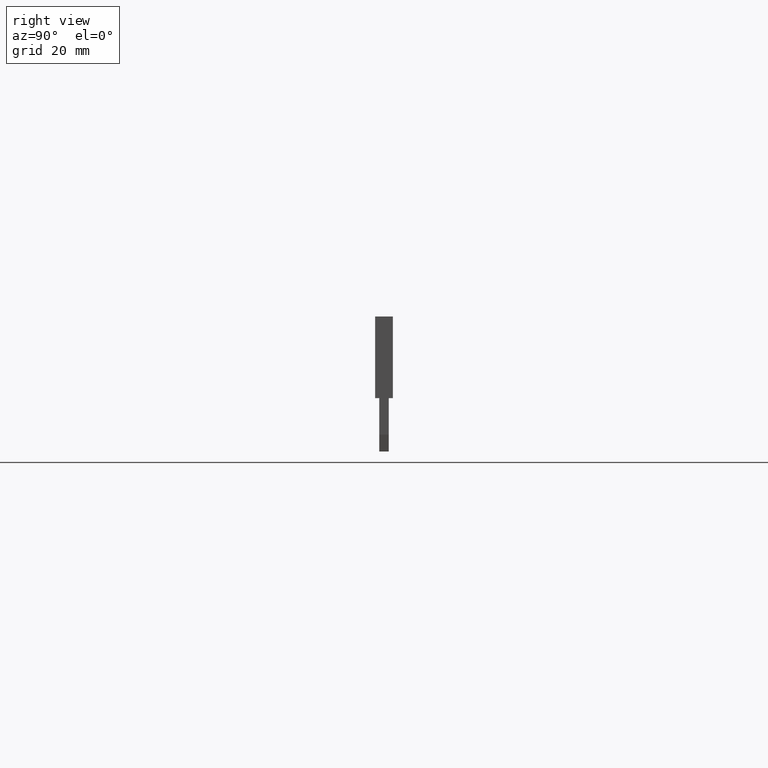
[diagram: clean part render]
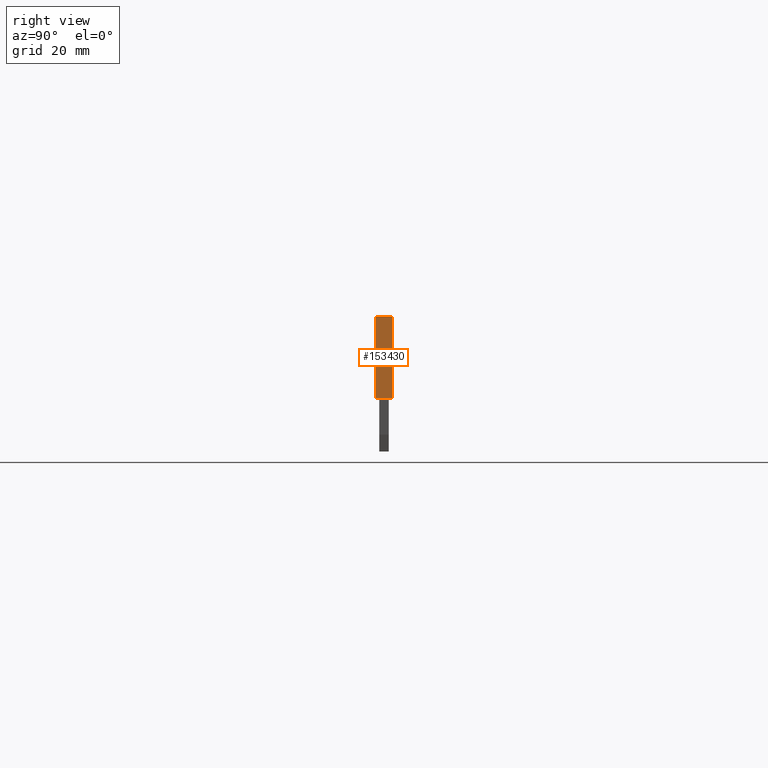
[diagram: same view with one face highlighted and labeled with its STEP entity id]
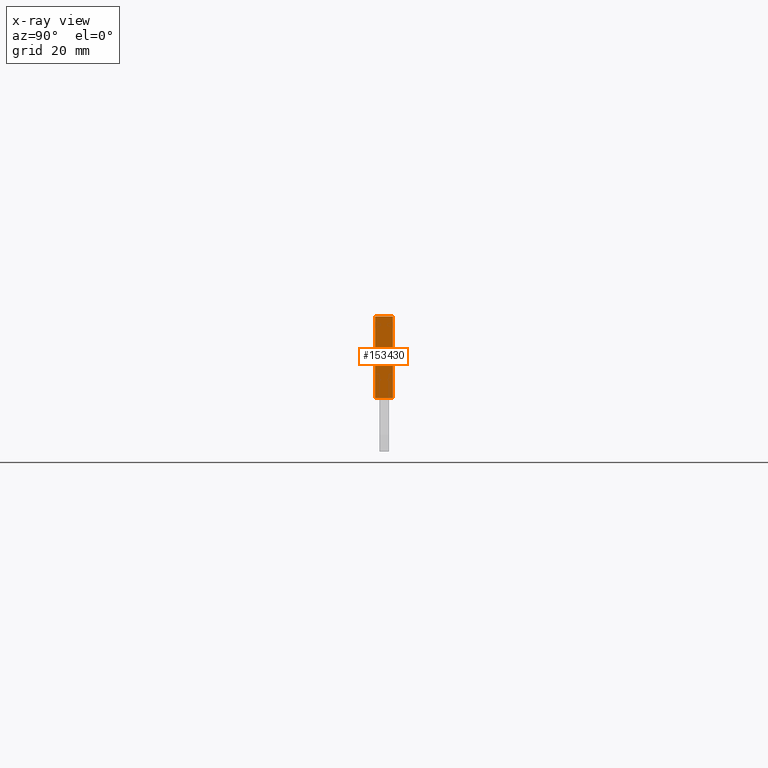
[diagram: x-ray of the same camera — body ghosted, the highlighted face saturated]
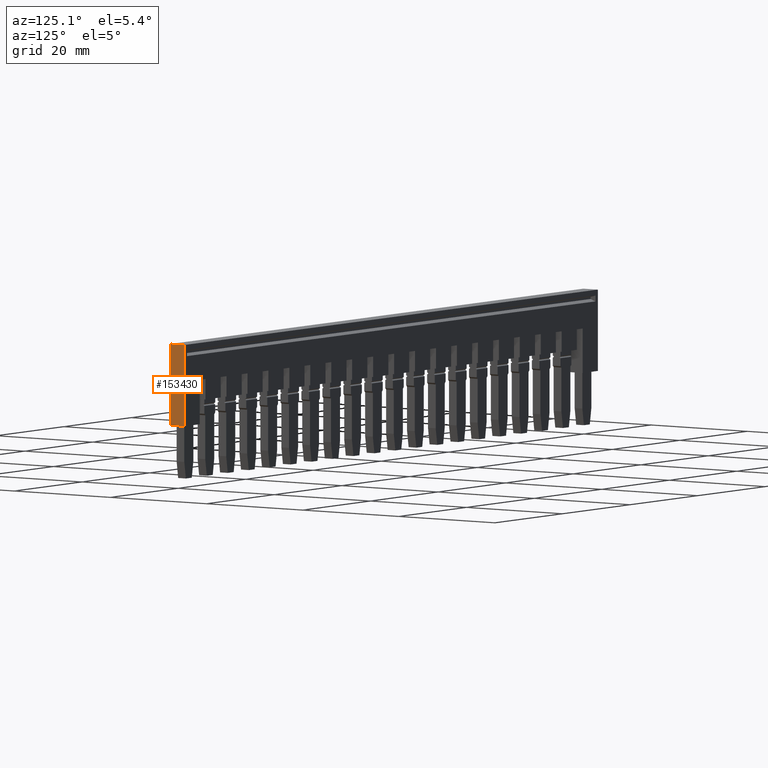
[diagram: same view with one face highlighted and labeled with its STEP entity id]
A machine part, right view. The second image highlights one B-rep face of the part: STEP entity #153430.
The next image is the same camera in x-ray: the body ghosted, the highlighted face saturated — about 0% of this face is hidden behind the body in this view.
A second angle (auxiliary view) of the same face is appended — the face is thin or edge-on in the first view.
In plain terms, the highlighted planar face has unit normal (1, 0, 0).
Its self-contained STEP definition (entity closure, byte-faithful):
#5770=CARTESIAN_POINT('',(2.6071672216854,-12.605123999998,
135.109999999999));
#5780=DIRECTION('',(-4.93038065763132E-32,1.,-2.22044604925031E-16));
#5790=VECTOR('',#5780,1.);
#5800=LINE('',#5770,#5790);
#5810=CARTESIAN_POINT('',(2.60716722168539,-23.0749999999984,
135.109999999999));
#5820=VERTEX_POINT('',#5810);
#5830=CARTESIAN_POINT('',(2.60716722168539,-9.17499999999835,
135.109999999999));
#5840=VERTEX_POINT('',#5830);
#5850=EDGE_CURVE('',#5820,#5840,#5800,.T.);
#73340=CARTESIAN_POINT('',(5.60716722168541,-23.0749999999984,
135.109999999999));
#73350=VERTEX_POINT('',#73340);
#73380=CARTESIAN_POINT('',(5.60716722168541,-12.605123999998,
135.109999999999));
#73390=DIRECTION('',(-4.93038065763132E-32,1.,-2.22044604925031E-16));
#73400=VECTOR('',#73390,1.);
#73410=LINE('',#73380,#73400);
#73420=CARTESIAN_POINT('',(5.60716722168541,-9.17499999999835,
135.109999999999));
#73430=VERTEX_POINT('',#73420);
#73440=EDGE_CURVE('',#73350,#73430,#73410,.T.);
#74460=CARTESIAN_POINT('',(2.60716722168541,-23.0749999999984,
135.109999999999));
#74470=DIRECTION('',(1.,4.74778387287989E-66,-2.22044604925031E-16));
#74480=VECTOR('',#74470,1.);
#74490=LINE('',#74460,#74480);
#74500=EDGE_CURVE('',#5820,#73350,#74490,.T.);
#153270=CARTESIAN_POINT('',(3.01698249421057,-16.2920214897573,
135.109999999999));
#153280=DIRECTION('',(2.22044604925031E-16,2.22044604925031E-16,1.));
#153290=DIRECTION('',(1.,4.74778387287989E-66,-2.22044604925031E-16));
#153300=AXIS2_PLACEMENT_3D('',#153270,#153280,#153290);
#153310=PLANE('',#153300);
#153320=CARTESIAN_POINT('',(2.60716722168542,-9.17499999999835,
135.109999999999));
#153330=DIRECTION('',(1.,4.74778387287989E-66,-2.22044604925031E-16));
#153340=VECTOR('',#153330,1.);
#153350=LINE('',#153320,#153340);
#153360=EDGE_CURVE('',#5840,#73430,#153350,.T.);
#153370=ORIENTED_EDGE('',*,*,#153360,.F.);
#153380=ORIENTED_EDGE('',*,*,#73440,.T.);
#153390=ORIENTED_EDGE('',*,*,#74500,.T.);
#153400=ORIENTED_EDGE('',*,*,#5850,.F.);
#153410=EDGE_LOOP('',(#153400,#153390,#153380,#153370));
#153420=FACE_OUTER_BOUND('',#153410,.T.);
#153430=ADVANCED_FACE('',(#153420),#153310,.T.);